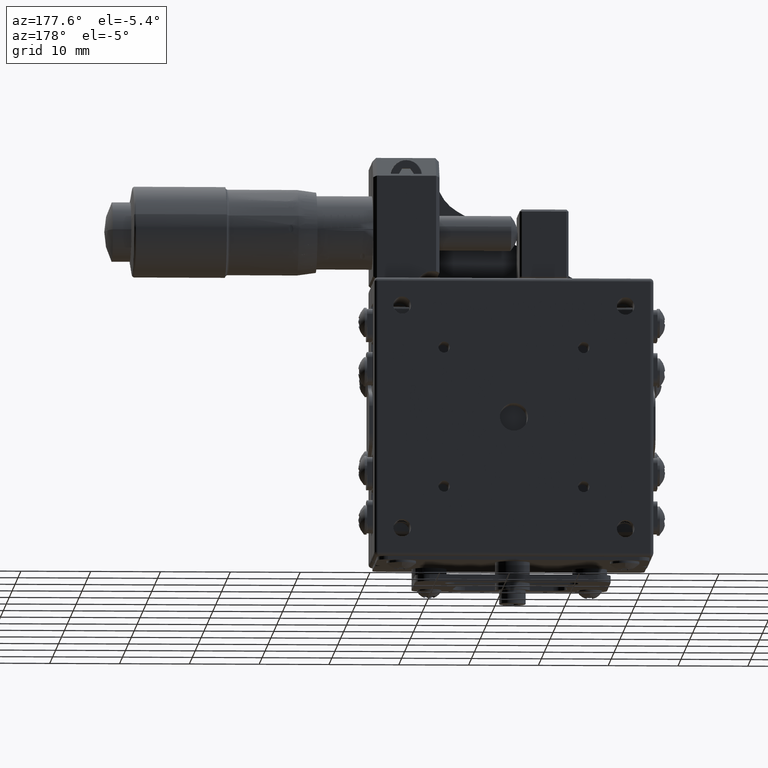
[diagram: clean part render]
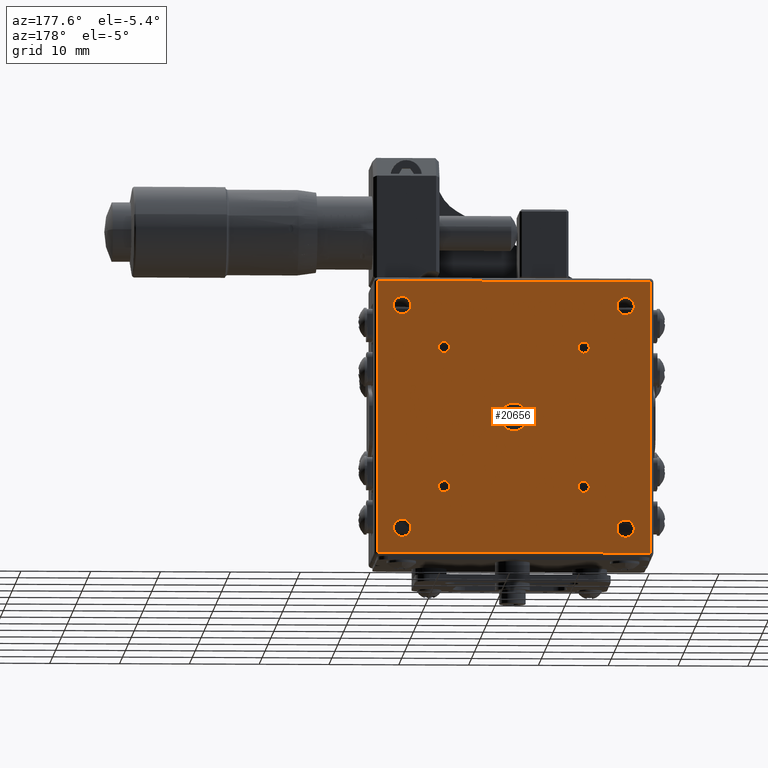
[diagram: same view with one face highlighted and labeled with its STEP entity id]
A machine part, auxiliary view. The second image highlights one B-rep face of the part: STEP entity #20656.
In plain terms, the highlighted planar face has unit normal (-0, 1, 0).
Its self-contained STEP definition (entity closure, byte-faithful):
#179 = EDGE_CURVE ( 'NONE', #22149, #3751, #32493, .T. ) ;
#196 = DIRECTION ( 'NONE',  ( 0.000000000000000000, 1.000000000000000000, 0.000000000000000000 ) ) ;
#270 = PLANE ( 'NONE',  #39697 ) ;
#786 = CARTESIAN_POINT ( 'NONE',  ( 16.39558905639309927, 10.69095477386934157, -20.00000000000000000 ) ) ;
#1050 = CARTESIAN_POINT ( 'NONE',  ( 12.89558905639306019, 10.69095477386934157, -16.00000000000000000 ) ) ;
#1181 = DIRECTION ( 'NONE',  ( 0.000000000000000000, 1.000000000000000000, 0.000000000000000000 ) ) ;
#1526 = LINE ( 'NONE', #31832, #47672 ) ;
#1788 = VERTEX_POINT ( 'NONE', #3400 ) ;
#2028 = CIRCLE ( 'NONE', #32985, 1.250000000000001110 ) ;
#2754 = DIRECTION ( 'NONE',  ( 0.000000000000000000, 0.000000000000000000, 1.000000000000000000 ) ) ;
#3113 = DIRECTION ( 'NONE',  ( 0.000000000000000000, 1.000000000000000000, 0.000000000000000000 ) ) ;
#3119 = EDGE_CURVE ( 'NONE', #29302, #9626, #12373, .T. ) ;
#3253 = AXIS2_PLACEMENT_3D ( 'NONE', #34487, #40973, #4183 ) ;
#3319 = ORIENTED_EDGE ( 'NONE', *, *, #7883, .F. ) ;
#3400 = CARTESIAN_POINT ( 'NONE',  ( -19.10441094360695047, 10.69095477386934157, -17.25000000000000000 ) ) ;
#3507 = DIRECTION ( 'NONE',  ( 0.000000000000000000, 0.000000000000000000, 1.000000000000000000 ) ) ;
#3532 = CARTESIAN_POINT ( 'NONE',  ( -3.104410943606925155, 10.69095477386934157, -5.204170427930419706E-15 ) ) ;
#3582 = CARTESIAN_POINT ( 'NONE',  ( -13.10441094360693981, 10.69095477386934157, 9.199999999999999289 ) ) ;
#3747 = DIRECTION ( 'NONE',  ( 0.000000000000000000, 1.000000000000000000, 0.000000000000000000 ) ) ;
#3751 = VERTEX_POINT ( 'NONE', #31330 ) ;
#3951 = CIRCLE ( 'NONE', #11114, 1.250000000000001110 ) ;
#4059 = CARTESIAN_POINT ( 'NONE',  ( 6.895589056393070848, 10.69095477386934157, -10.80000000000000071 ) ) ;
#4183 = DIRECTION ( 'NONE',  ( 0.000000000000000000, 0.000000000000000000, 1.000000000000000000 ) ) ;
#4224 = DIRECTION ( 'NONE',  ( 0.000000000000000000, 1.000000000000000000, 0.000000000000000000 ) ) ;
#4455 = CIRCLE ( 'NONE', #46517, 2.000000000000000000 ) ;
#4858 = EDGE_CURVE ( 'NONE', #25180, #10352, #16201, .T. ) ;
#5044 = VERTEX_POINT ( 'NONE', #41728 ) ;
#5253 = DIRECTION ( 'NONE',  ( 0.000000000000000000, 0.000000000000000000, 1.000000000000000000 ) ) ;
#5438 = AXIS2_PLACEMENT_3D ( 'NONE', #14843, #49121, #18566 ) ;
#5690 = AXIS2_PLACEMENT_3D ( 'NONE', #30078, #3747, #3507 ) ;
#6531 = ORIENTED_EDGE ( 'NONE', *, *, #10749, .F. ) ;
#6679 = CARTESIAN_POINT ( 'NONE',  ( -19.10441094360695047, 10.69095477386934157, 14.75000000000000000 ) ) ;
#6782 = FACE_BOUND ( 'NONE', #41567, .T. ) ;
#6864 = VECTOR ( 'NONE', #40717, 1000.000000000000000 ) ;
#6959 = CARTESIAN_POINT ( 'NONE',  ( 6.895589056393070848, 10.69095477386934157, -9.199999999999999289 ) ) ;
#7046 = AXIS2_PLACEMENT_3D ( 'NONE', #8667, #1181, #13125 ) ;
#7087 = DIRECTION ( 'NONE',  ( 0.000000000000000000, 1.000000000000000000, 0.000000000000000000 ) ) ;
#7147 = AXIS2_PLACEMENT_3D ( 'NONE', #43006, #20647, #5253 ) ;
#7571 = AXIS2_PLACEMENT_3D ( 'NONE', #14305, #3113, #25471 ) ;
#7652 = DIRECTION ( 'NONE',  ( 0.000000000000000000, 0.000000000000000000, 1.000000000000000000 ) ) ;
#7653 = CIRCLE ( 'NONE', #33847, 0.8000000000000003775 ) ;
#7883 = EDGE_CURVE ( 'NONE', #3751, #22149, #17366, .T. ) ;
#7939 = CARTESIAN_POINT ( 'NONE',  ( 12.89558905639306019, 10.69095477386934157, -17.25000000000000000 ) ) ;
#7969 = ORIENTED_EDGE ( 'NONE', *, *, #32970, .F. ) ;
#7983 = CARTESIAN_POINT ( 'NONE',  ( -22.60441094360690073, 10.69095477386934157, -19.50000000000000000 ) ) ;
#8310 = EDGE_LOOP ( 'NONE', ( #33671, #29840 ) ) ;
#8535 = ORIENTED_EDGE ( 'NONE', *, *, #16636, .T. ) ;
#8597 = VERTEX_POINT ( 'NONE', #45778 ) ;
#8620 = CARTESIAN_POINT ( 'NONE',  ( 16.39558905639309927, 10.69095477386934157, -19.50000000000000000 ) ) ;
#8633 = VERTEX_POINT ( 'NONE', #14776 ) ;
#8667 = CARTESIAN_POINT ( 'NONE',  ( 12.89558905639306019, 10.69095477386934157, -16.00000000000000000 ) ) ;
#8738 = AXIS2_PLACEMENT_3D ( 'NONE', #11673, #48941, #26792 ) ;
#8936 = VERTEX_POINT ( 'NONE', #4059 ) ;
#9123 = ORIENTED_EDGE ( 'NONE', *, *, #14129, .F. ) ;
#9626 = VERTEX_POINT ( 'NONE', #18141 ) ;
#10352 = VERTEX_POINT ( 'NONE', #8620 ) ;
#10386 = ORIENTED_EDGE ( 'NONE', *, *, #38974, .F. ) ;
#10546 = EDGE_LOOP ( 'NONE', ( #38449, #30180 ) ) ;
#10561 = ORIENTED_EDGE ( 'NONE', *, *, #14783, .T. ) ;
#10726 = AXIS2_PLACEMENT_3D ( 'NONE', #36791, #24871, #2754 ) ;
#10749 = EDGE_CURVE ( 'NONE', #17796, #1788, #28551, .T. ) ;
#10957 = DIRECTION ( 'NONE',  ( 0.000000000000000000, 0.000000000000000000, 1.000000000000000000 ) ) ;
#11066 = DIRECTION ( 'NONE',  ( 0.000000000000000000, 0.000000000000000000, 1.000000000000000000 ) ) ;
#11114 = AXIS2_PLACEMENT_3D ( 'NONE', #30804, #4224, #19391 ) ;
#11308 = CARTESIAN_POINT ( 'NONE',  ( 6.895589056393070848, 10.69095477386934157, -10.00000000000000000 ) ) ;
#11495 = DIRECTION ( 'NONE',  ( 0.000000000000000000, 0.000000000000000000, 1.000000000000000000 ) ) ;
#11673 = CARTESIAN_POINT ( 'NONE',  ( -13.10441094360693981, 10.69095477386934157, 10.00000000000000000 ) ) ;
#11737 = DIRECTION ( 'NONE',  ( 0.000000000000000000, 1.000000000000000000, 0.000000000000000000 ) ) ;
#11996 = CIRCLE ( 'NONE', #5690, 0.8000000000000003775 ) ;
#12373 = CIRCLE ( 'NONE', #7571, 0.8000000000000003775 ) ;
#12845 = EDGE_CURVE ( 'NONE', #45839, #16394, #41496, .T. ) ;
#13125 = DIRECTION ( 'NONE',  ( 0.000000000000000000, 0.000000000000000000, 1.000000000000000000 ) ) ;
#13751 = FACE_BOUND ( 'NONE', #19774, .T. ) ;
#13928 = ORIENTED_EDGE ( 'NONE', *, *, #21910, .T. ) ;
#14090 = DIRECTION ( 'NONE',  ( 0.000000000000000000, 1.000000000000000000, 0.000000000000000000 ) ) ;
#14129 = EDGE_CURVE ( 'NONE', #1788, #17796, #32139, .T. ) ;
#14245 = AXIS2_PLACEMENT_3D ( 'NONE', #1050, #16215, #31353 ) ;
#14305 = CARTESIAN_POINT ( 'NONE',  ( -13.10441094360693981, 10.69095477386934157, -10.00000000000000000 ) ) ;
#14327 = EDGE_CURVE ( 'NONE', #45404, #41878, #2028, .T. ) ;
#14549 = CIRCLE ( 'NONE', #15422, 1.250000000000001110 ) ;
#14762 = CARTESIAN_POINT ( 'NONE',  ( -3.104410943606925155, 10.69095477386934157, 2.000000000000000000 ) ) ;
#14776 = CARTESIAN_POINT ( 'NONE',  ( 6.895589056393070848, 10.69095477386934157, 10.80000000000000071 ) ) ;
#14783 = EDGE_CURVE ( 'NONE', #36242, #25180, #34459, .T. ) ;
#14843 = CARTESIAN_POINT ( 'NONE',  ( 6.895589056393070848, 10.69095477386934157, -10.00000000000000000 ) ) ;
#15034 = EDGE_LOOP ( 'NONE', ( #10561, #48589, #8535, #13928 ) ) ;
#15422 = AXIS2_PLACEMENT_3D ( 'NONE', #44378, #14090, #29472 ) ;
#16201 = LINE ( 'NONE', #786, #25041 ) ;
#16215 = DIRECTION ( 'NONE',  ( 0.000000000000000000, 1.000000000000000000, 0.000000000000000000 ) ) ;
#16394 = VERTEX_POINT ( 'NONE', #14762 ) ;
#16636 = EDGE_CURVE ( 'NONE', #10352, #17957, #20867, .T. ) ;
#16846 = EDGE_CURVE ( 'NONE', #16394, #45839, #4455, .T. ) ;
#17366 = CIRCLE ( 'NONE', #7046, 1.249999999999999334 ) ;
#17379 = ORIENTED_EDGE ( 'NONE', *, *, #30353, .F. ) ;
#17482 = FACE_BOUND ( 'NONE', #28713, .T. ) ;
#17646 = CARTESIAN_POINT ( 'NONE',  ( -22.60441094360690073, 10.69095477386934157, -19.50000000000000000 ) ) ;
#17796 = VERTEX_POINT ( 'NONE', #37311 ) ;
#17957 = VERTEX_POINT ( 'NONE', #7983 ) ;
#18141 = CARTESIAN_POINT ( 'NONE',  ( -13.10441094360693981, 10.69095477386934157, -10.80000000000000071 ) ) ;
#18566 = DIRECTION ( 'NONE',  ( 0.000000000000000000, 0.000000000000000000, 1.000000000000000000 ) ) ;
#19149 = CIRCLE ( 'NONE', #8738, 0.8000000000000003775 ) ;
#19391 = DIRECTION ( 'NONE',  ( 0.000000000000000000, 0.000000000000000000, 1.000000000000000000 ) ) ;
#19564 = CARTESIAN_POINT ( 'NONE',  ( -13.10441094360693981, 10.69095477386934157, -10.00000000000000000 ) ) ;
#19774 = EDGE_LOOP ( 'NONE', ( #45302, #26107 ) ) ;
#20329 = VECTOR ( 'NONE', #38685, 1000.000000000000000 ) ;
#20647 = DIRECTION ( 'NONE',  ( 0.000000000000000000, 1.000000000000000000, 0.000000000000000000 ) ) ;
#20656 = ADVANCED_FACE ( 'NONE', ( #6782, #20944, #44769, #21915, #13751, #17482, #40068, #28880, #44033, #25153 ), #270, .T. ) ;
#20791 = AXIS2_PLACEMENT_3D ( 'NONE', #21810, #37221, #34218 ) ;
#20835 = ORIENTED_EDGE ( 'NONE', *, *, #24269, .F. ) ;
#20867 = LINE ( 'NONE', #17646, #6864 ) ;
#20944 = FACE_BOUND ( 'NONE', #48298, .T. ) ;
#21810 = CARTESIAN_POINT ( 'NONE',  ( 12.89558905639306019, 10.69095477386934157, 16.00000000000000000 ) ) ;
#21910 = EDGE_CURVE ( 'NONE', #17957, #36242, #1526, .T. ) ;
#21915 = FACE_BOUND ( 'NONE', #25361, .T. ) ;
#22141 = EDGE_CURVE ( 'NONE', #5044, #42656, #19149, .T. ) ;
#22149 = VERTEX_POINT ( 'NONE', #7939 ) ;
#22201 = VERTEX_POINT ( 'NONE', #23308 ) ;
#22589 = DIRECTION ( 'NONE',  ( 0.000000000000000000, 1.000000000000000000, 0.000000000000000000 ) ) ;
#23036 = CARTESIAN_POINT ( 'NONE',  ( -3.104410943606925155, 10.69095477386934157, -5.204170427930419706E-15 ) ) ;
#23156 = AXIS2_PLACEMENT_3D ( 'NONE', #11308, #34612, #30640 ) ;
#23308 = CARTESIAN_POINT ( 'NONE',  ( 12.89558905639306019, 10.69095477386934157, 14.75000000000000000 ) ) ;
#23311 = CARTESIAN_POINT ( 'NONE',  ( -22.60441094360690073, 10.69095477386934157, 19.50000000000000000 ) ) ;
#23939 = CARTESIAN_POINT ( 'NONE',  ( -13.10441094360693981, 10.69095477386934157, -9.199999999999999289 ) ) ;
#24269 = EDGE_CURVE ( 'NONE', #26679, #22201, #38212, .T. ) ;
#24871 = DIRECTION ( 'NONE',  ( 0.000000000000000000, 1.000000000000000000, 0.000000000000000000 ) ) ;
#25041 = VECTOR ( 'NONE', #43025, 1000.000000000000000 ) ;
#25153 = FACE_OUTER_BOUND ( 'NONE', #15034, .T. ) ;
#25180 = VERTEX_POINT ( 'NONE', #35825 ) ;
#25361 = EDGE_LOOP ( 'NONE', ( #3319, #42263 ) ) ;
#25471 = DIRECTION ( 'NONE',  ( 0.000000000000000000, 0.000000000000000000, 1.000000000000000000 ) ) ;
#26107 = ORIENTED_EDGE ( 'NONE', *, *, #31394, .F. ) ;
#26679 = VERTEX_POINT ( 'NONE', #31793 ) ;
#26792 = DIRECTION ( 'NONE',  ( 0.000000000000000000, 0.000000000000000000, 1.000000000000000000 ) ) ;
#26814 = CIRCLE ( 'NONE', #5438, 0.8000000000000003775 ) ;
#27858 = DIRECTION ( 'NONE',  ( 0.000000000000000000, 0.000000000000000000, 1.000000000000000000 ) ) ;
#28551 = CIRCLE ( 'NONE', #7147, 1.249999999999999334 ) ;
#28713 = EDGE_LOOP ( 'NONE', ( #7969, #29491 ) ) ;
#28880 = FACE_BOUND ( 'NONE', #10546, .T. ) ;
#28918 = EDGE_CURVE ( 'NONE', #8936, #32988, #26814, .T. ) ;
#29302 = VERTEX_POINT ( 'NONE', #23939 ) ;
#29472 = DIRECTION ( 'NONE',  ( 0.000000000000000000, 0.000000000000000000, 1.000000000000000000 ) ) ;
#29491 = ORIENTED_EDGE ( 'NONE', *, *, #42608, .F. ) ;
#29840 = ORIENTED_EDGE ( 'NONE', *, *, #46621, .F. ) ;
#29964 = ORIENTED_EDGE ( 'NONE', *, *, #16846, .F. ) ;
#30078 = CARTESIAN_POINT ( 'NONE',  ( -13.10441094360693981, 10.69095477386934157, 10.00000000000000000 ) ) ;
#30180 = ORIENTED_EDGE ( 'NONE', *, *, #28918, .F. ) ;
#30353 = EDGE_CURVE ( 'NONE', #41878, #45404, #3951, .T. ) ;
#30640 = DIRECTION ( 'NONE',  ( 0.000000000000000000, 0.000000000000000000, 1.000000000000000000 ) ) ;
#30804 = CARTESIAN_POINT ( 'NONE',  ( -19.10441094360695047, 10.69095477386934157, 16.00000000000000000 ) ) ;
#30978 = CARTESIAN_POINT ( 'NONE',  ( -23.10441094360690073, 10.69095477386934157, 19.50000000000000000 ) ) ;
#31330 = CARTESIAN_POINT ( 'NONE',  ( 12.89558905639306019, 10.69095477386934157, -14.75000000000000000 ) ) ;
#31353 = DIRECTION ( 'NONE',  ( 0.000000000000000000, 0.000000000000000000, 1.000000000000000000 ) ) ;
#31394 = EDGE_CURVE ( 'NONE', #42656, #5044, #11996, .T. ) ;
#31793 = CARTESIAN_POINT ( 'NONE',  ( 12.89558905639306019, 10.69095477386934157, 17.25000000000000000 ) ) ;
#31832 = CARTESIAN_POINT ( 'NONE',  ( -22.60441094360690073, 10.69095477386934157, -20.00000000000000000 ) ) ;
#32139 = CIRCLE ( 'NONE', #10726, 1.249999999999999334 ) ;
#32493 = CIRCLE ( 'NONE', #14245, 1.249999999999999334 ) ;
#32942 = CARTESIAN_POINT ( 'NONE',  ( -3.104410943606925155, 10.69095477386934157, -2.000000000000000000 ) ) ;
#32970 = EDGE_CURVE ( 'NONE', #8633, #8597, #36599, .T. ) ;
#32985 = AXIS2_PLACEMENT_3D ( 'NONE', #44967, #22589, #10957 ) ;
#32988 = VERTEX_POINT ( 'NONE', #6959 ) ;
#33671 = ORIENTED_EDGE ( 'NONE', *, *, #3119, .F. ) ;
#33739 = DIRECTION ( 'NONE',  ( 0.000000000000000000, 0.000000000000000000, 1.000000000000000000 ) ) ;
#33847 = AXIS2_PLACEMENT_3D ( 'NONE', #40623, #7087, #11066 ) ;
#34218 = DIRECTION ( 'NONE',  ( 0.000000000000000000, 0.000000000000000000, 1.000000000000000000 ) ) ;
#34284 = EDGE_CURVE ( 'NONE', #32988, #8936, #44600, .T. ) ;
#34459 = LINE ( 'NONE', #30978, #20329 ) ;
#34487 = CARTESIAN_POINT ( 'NONE',  ( 6.895589056393070848, 10.69095477386934157, 10.00000000000000000 ) ) ;
#34612 = DIRECTION ( 'NONE',  ( 0.000000000000000000, 1.000000000000000000, 0.000000000000000000 ) ) ;
#35501 = EDGE_LOOP ( 'NONE', ( #20835, #10386 ) ) ;
#35825 = CARTESIAN_POINT ( 'NONE',  ( 16.39558905639309927, 10.69095477386934157, 19.50000000000000000 ) ) ;
#36242 = VERTEX_POINT ( 'NONE', #23311 ) ;
#36599 = CIRCLE ( 'NONE', #3253, 0.8000000000000003775 ) ;
#36791 = CARTESIAN_POINT ( 'NONE',  ( -19.10441094360695047, 10.69095477386934157, -16.00000000000000000 ) ) ;
#37221 = DIRECTION ( 'NONE',  ( 0.000000000000000000, 1.000000000000000000, 0.000000000000000000 ) ) ;
#37311 = CARTESIAN_POINT ( 'NONE',  ( -19.10441094360695047, 10.69095477386934157, -14.75000000000000000 ) ) ;
#37494 = CARTESIAN_POINT ( 'NONE',  ( -19.10441094360695047, 10.69095477386934157, 17.25000000000000000 ) ) ;
#38212 = CIRCLE ( 'NONE', #20791, 1.250000000000001110 ) ;
#38449 = ORIENTED_EDGE ( 'NONE', *, *, #34284, .F. ) ;
#38685 = DIRECTION ( 'NONE',  ( 1.000000000000000000, 0.000000000000000000, 0.000000000000000000 ) ) ;
#38974 = EDGE_CURVE ( 'NONE', #22201, #26679, #14549, .T. ) ;
#39569 = AXIS2_PLACEMENT_3D ( 'NONE', #19564, #41671, #7652 ) ;
#39697 = AXIS2_PLACEMENT_3D ( 'NONE', #41761, #45975, #41523 ) ;
#39928 = AXIS2_PLACEMENT_3D ( 'NONE', #3532, #11737, #11495 ) ;
#40068 = FACE_BOUND ( 'NONE', #8310, .T. ) ;
#40623 = CARTESIAN_POINT ( 'NONE',  ( 6.895589056393070848, 10.69095477386934157, 10.00000000000000000 ) ) ;
#40717 = DIRECTION ( 'NONE',  ( -1.000000000000000000, 0.000000000000000000, 0.000000000000000000 ) ) ;
#40973 = DIRECTION ( 'NONE',  ( 0.000000000000000000, 1.000000000000000000, 0.000000000000000000 ) ) ;
#41496 = CIRCLE ( 'NONE', #39928, 2.000000000000000000 ) ;
#41523 = DIRECTION ( 'NONE',  ( 1.000000000000000000, 0.000000000000000000, 0.000000000000000000 ) ) ;
#41567 = EDGE_LOOP ( 'NONE', ( #17379, #46179 ) ) ;
#41671 = DIRECTION ( 'NONE',  ( 0.000000000000000000, 1.000000000000000000, 0.000000000000000000 ) ) ;
#41728 = CARTESIAN_POINT ( 'NONE',  ( -13.10441094360693981, 10.69095477386934157, 10.80000000000000071 ) ) ;
#41761 = CARTESIAN_POINT ( 'NONE',  ( -23.10441094360690073, 10.69095477386934157, -20.00000000000000000 ) ) ;
#41878 = VERTEX_POINT ( 'NONE', #37494 ) ;
#42263 = ORIENTED_EDGE ( 'NONE', *, *, #179, .F. ) ;
#42608 = EDGE_CURVE ( 'NONE', #8597, #8633, #7653, .T. ) ;
#42656 = VERTEX_POINT ( 'NONE', #3582 ) ;
#43006 = CARTESIAN_POINT ( 'NONE',  ( -19.10441094360695047, 10.69095477386934157, -16.00000000000000000 ) ) ;
#43025 = DIRECTION ( 'NONE',  ( 0.000000000000000000, 0.000000000000000000, -1.000000000000000000 ) ) ;
#43329 = EDGE_LOOP ( 'NONE', ( #29964, #46032 ) ) ;
#44033 = FACE_BOUND ( 'NONE', #43329, .T. ) ;
#44378 = CARTESIAN_POINT ( 'NONE',  ( 12.89558905639306019, 10.69095477386934157, 16.00000000000000000 ) ) ;
#44600 = CIRCLE ( 'NONE', #23156, 0.8000000000000003775 ) ;
#44769 = FACE_BOUND ( 'NONE', #35501, .T. ) ;
#44967 = CARTESIAN_POINT ( 'NONE',  ( -19.10441094360695047, 10.69095477386934157, 16.00000000000000000 ) ) ;
#45302 = ORIENTED_EDGE ( 'NONE', *, *, #22141, .F. ) ;
#45404 = VERTEX_POINT ( 'NONE', #6679 ) ;
#45778 = CARTESIAN_POINT ( 'NONE',  ( 6.895589056393070848, 10.69095477386934157, 9.199999999999999289 ) ) ;
#45839 = VERTEX_POINT ( 'NONE', #32942 ) ;
#45975 = DIRECTION ( 'NONE',  ( -0.000000000000000000, 1.000000000000000000, 0.000000000000000000 ) ) ;
#46032 = ORIENTED_EDGE ( 'NONE', *, *, #12845, .F. ) ;
#46179 = ORIENTED_EDGE ( 'NONE', *, *, #14327, .F. ) ;
#46517 = AXIS2_PLACEMENT_3D ( 'NONE', #23036, #196, #33739 ) ;
#46621 = EDGE_CURVE ( 'NONE', #9626, #29302, #49112, .T. ) ;
#47672 = VECTOR ( 'NONE', #27858, 1000.000000000000000 ) ;
#48298 = EDGE_LOOP ( 'NONE', ( #6531, #9123 ) ) ;
#48589 = ORIENTED_EDGE ( 'NONE', *, *, #4858, .T. ) ;
#48941 = DIRECTION ( 'NONE',  ( 0.000000000000000000, 1.000000000000000000, 0.000000000000000000 ) ) ;
#49112 = CIRCLE ( 'NONE', #39569, 0.8000000000000003775 ) ;
#49121 = DIRECTION ( 'NONE',  ( 0.000000000000000000, 1.000000000000000000, 0.000000000000000000 ) ) ;